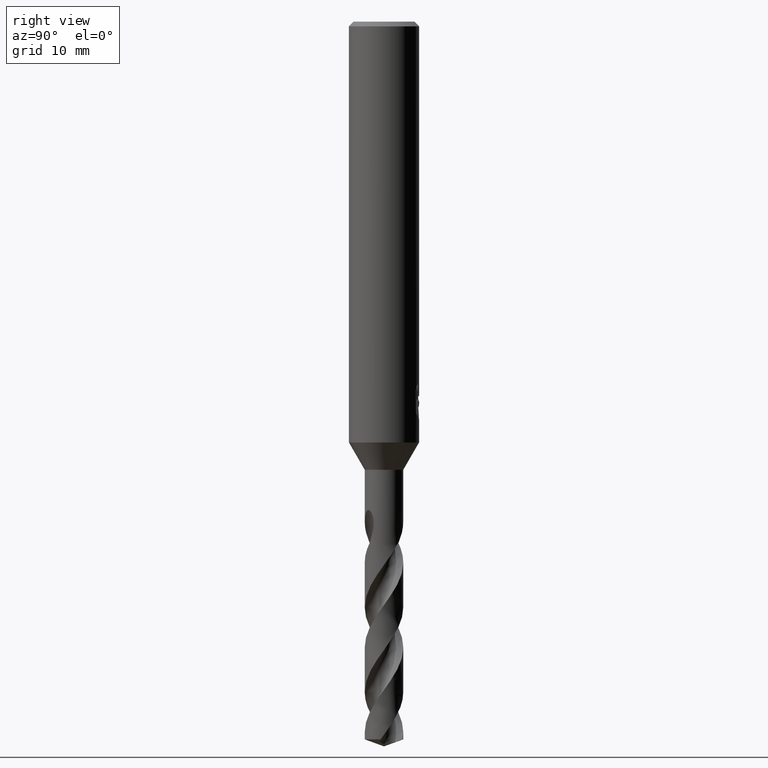
[diagram: clean part render]
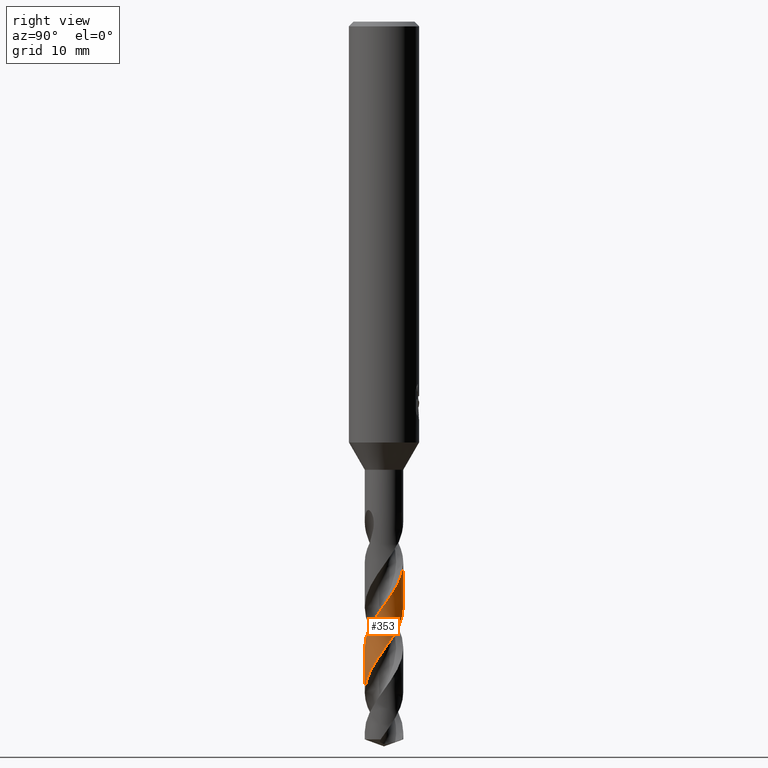
[diagram: same view with one face highlighted and labeled with its STEP entity id]
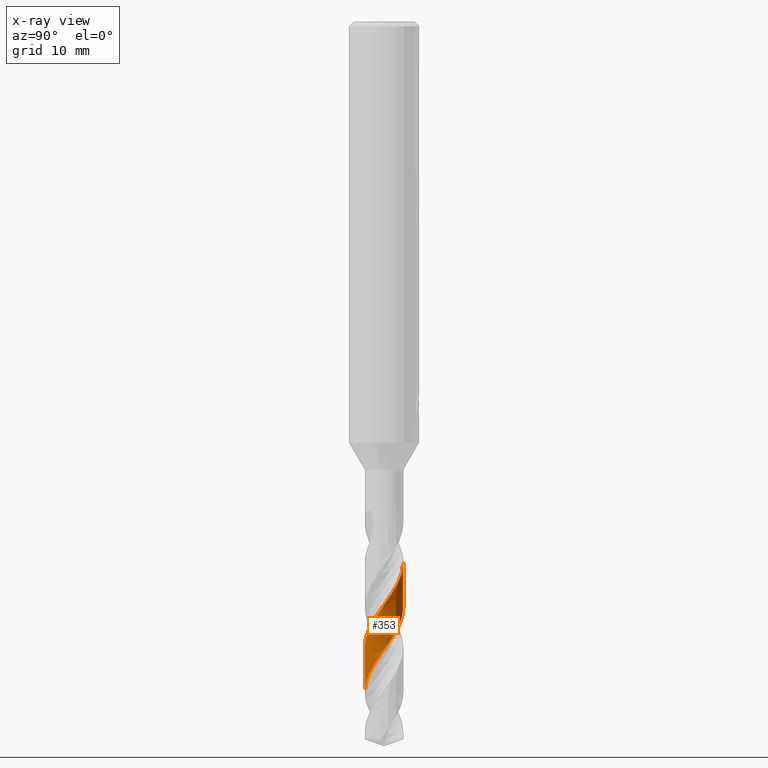
[diagram: x-ray of the same camera — body ghosted, the highlighted face saturated]
A machine part, right view. The second image highlights one B-rep face of the part: STEP entity #353.
The next image is the same camera in x-ray: the body ghosted, the highlighted face saturated — about 0% of this face is hidden behind the body in this view.
In plain terms, the highlighted conical surface has half-angle 0 deg.
Its self-contained STEP definition (entity closure, byte-faithful):
#309=VERTEX_POINT('',#819);
#353=ADVANCED_FACE('',(#869),#870,.T.);
#379=EDGE_CURVE('',#425,#737,#898,.T.);
#425=VERTEX_POINT('',#948);
#527=EDGE_CURVE('',#699,#737,#1063,.T.);
#691=EDGE_CURVE('',#699,#309,#1238,.T.);
#699=VERTEX_POINT('',#1247);
#737=VERTEX_POINT('',#1288);
#763=EDGE_CURVE('',#425,#309,#1316,.T.);
#819=CARTESIAN_POINT('',(-4.29757238529856E-012,-1.64995948228063,-53.53923476112));
#869=FACE_OUTER_BOUND('',#2096,.T.);
#870=CONICAL_SURFACE('',#2097,1.64995,5.15478555160187E-006);
#898=B_SPLINE_CURVE_WITH_KNOTS('',3,(#2405,#2406,#2407,#2408,#2409,#2410,#2411,#2412,#2413,#2414,#2415,#2416,#2417,#2418,#2419,#2420,#2421,#2422,#2423,#2424,#2425,#2426,#2427,#2428,#2429,#2430,#2431,#2432,#2433,#2434,#2435,#2436,#2437,#2438,#2439,#2440,#2441,#2442,#2443,#2444,#2445,#2446,#2447,#2448,#2449,#2450,#2451,#2452,#2453,#2454,#2455,#2456,#2457,#2458,#2459,#2460,#2461,#2462,#2463,#2464,#2465,#2466,#2467,#2468,#2469,#2470,#2471,#2472,#2473,#2474,#2475,#2476,#2477,#2478,#2479,#2480,#2481,#2482,#2483,#2484),.UNSPECIFIED.,.F.,.F.,(4,2,2,2,2,2,2,2,2,2,2,2,2,2,2,2,2,2,2,2,2,2,2,2,2,2,2,2,2,2,2,2,2,2,2,2,2,2,2,4),(0.0,0.936654168590701,1.53341847101532,1.82096909942437,2.22263054411962,2.77387093041088,3.73316041056545,4.20528015996942,4.85052500429398,5.93370910466652,6.11910520481942,7.20787945428481,7.61024288702898,8.1962060911429,9.24391561037399,9.65500218088401,10.5847428451121,11.0000485825015,11.9207724016093,12.347527747687,13.3305290457857,13.7034917992018,14.3174055845682,14.9344561027839,16.0374942137947,16.4024014950815,16.9459046809952,17.7136714483855,19.158643707242,19.659416950665,19.8424121654843,19.9605797826228,20.1051829639057,20.3058573077039,20.45498939836,20.5640584271276,20.680929651084,20.8641592525841,21.2535784283675,21.5619210214965),.UNSPECIFIED.);
#948=CARTESIAN_POINT('',(-5.56564880314397E-013,-1.64997919865343,-57.3641024703559));
#1063=LINE('',#3669,#3670);
#1238=B_SPLINE_CURVE_WITH_KNOTS('',3,(#4568,#4569,#4570,#4571,#4572,#4573,#4574,#4575,#4576,#4577,#4578,#4579,#4580,#4581,#4582,#4583,#4584,#4585,#4586,#4587,#4588,#4589,#4590,#4591,#4592,#4593,#4594,#4595,#4596,#4597,#4598,#4599,#4600,#4601,#4602,#4603,#4604,#4605,#4606,#4607,#4608,#4609,#4610,#4611,#4612,#4613,#4614,#4615,#4616,#4617,#4618,#4619,#4620,#4621,#4622,#4623,#4624,#4625,#4626,#4627,#4628,#4629,#4630,#4631,#4632,#4633,#4634,#4635,#4636,#4637,#4638,#4639,#4640,#4641,#4642,#4643,#4644,#4645,#4646,#4647,#4648,#4649,#4650,#4651,#4652,#4653,#4654,#4655,#4656,#4657,#4658,#4659,#4660,#4661,#4662,#4663),.UNSPECIFIED.,.F.,.F.,(4,2,2,2,2,2,2,2,2,2,2,2,2,2,2,2,2,2,2,2,2,2,2,2,2,2,2,2,2,2,2,2,2,2,2,2,2,2,2,2,2,2,2,2,2,2,2,4),(0.0,0.0700165623497992,0.100400821771222,0.117552978669846,0.127608380609091,0.349617333316838,0.41619752819465,0.457915672939033,0.496473863935403,0.547214202049622,0.658127612494924,0.705862693164858,0.835489133735537,0.907232766106796,0.968302841545072,0.998526717810259,1.06546504425116,1.94578151207064,2.09271465278354,2.50847442010473,2.97797359557852,3.80679059375761,4.37494109473815,5.11307460967204,5.77298387172185,6.68928809197674,6.80808210609517,7.67795932798041,8.5848889943836,9.05737084628214,9.87871690218857,10.3495337639685,11.2841425087653,11.7567890437276,12.7397886690961,13.2151735183789,13.8399944499678,14.7175140038209,14.9665239269621,15.9648504405574,16.5295470633208,17.3943693421963,17.6470507734527,18.62979068497,19.1608756776724,19.9706549312639,20.3814415592187,20.7960714352973),.UNSPECIFIED.);
#1247=CARTESIAN_POINT('',(9.89089745181191E-015,1.6499220608893,-46.2796909936593));
#1288=CARTESIAN_POINT('',(7.79090224859754E-011,1.6499417873786,-50.1065212476206));
#1316=LINE('',#5212,#5213);
#2096=EDGE_LOOP('',(#5330,#5331,#5332,#5333));
#2097=AXIS2_PLACEMENT_3D('',#5334,#5335,#5336);
#2405=CARTESIAN_POINT('',(-1.62487804019007,0.286829835456651,-61.3994491134608));
#2406=CARTESIAN_POINT('',(-1.65658207327476,0.10722040816341,-61.1460414921686));
#2407=CARTESIAN_POINT('',(-1.65816360091604,-0.0756871099392041,-60.8900208856617));
#2408=CARTESIAN_POINT('',(-1.61247304465644,-0.368383610417381,-60.4743910776431));
#2409=CARTESIAN_POINT('',(-1.58278070708708,-0.480272241920616,-60.3141743783466));
#2410=CARTESIAN_POINT('',(-1.5216746017873,-0.640382065816053,-60.0749821855219));
#2411=CARTESIAN_POINT('',(-1.49922303372301,-0.691292346113393,-59.9972952206045));
#2412=CARTESIAN_POINT('',(-1.43950767209933,-0.810121954850723,-59.8104617289039));
#2413=CARTESIAN_POINT('',(-1.39980786749593,-0.876960192948621,-59.7007709743299));
#2414=CARTESIAN_POINT('',(-1.29458315121534,-1.02855068400825,-59.4421186646543));
#2415=CARTESIAN_POINT('',(-1.22525932706739,-1.11025776617253,-59.2936322563048));
#2416=CARTESIAN_POINT('',(-1.01453906949032,-1.31449586108677,-58.8844429083165));
#2417=CARTESIAN_POINT('',(-0.85992953763041,-1.42042611777673,-58.6226768679746));
#2418=CARTESIAN_POINT('',(-0.607745599673416,-1.53671109236831,-58.2345891552087));
#2419=CARTESIAN_POINT('',(-0.521489494866867,-1.56808688485634,-58.1073098507256));
#2420=CARTESIAN_POINT('',(-0.31213411923689,-1.62502560826292,-57.804556568243));
#2421=CARTESIAN_POINT('',(-0.188200414045065,-1.64393480522184,-57.6284549272345));
#2422=CARTESIAN_POINT('',(0.145103927313678,-1.65682461580503,-57.1599928006804));
#2423=CARTESIAN_POINT('',(0.353180639810749,-1.62514377049107,-56.8744795723494));
#2424=CARTESIAN_POINT('',(0.58324465302738,-1.54386347660372,-56.530576127676));
#2425=CARTESIAN_POINT('',(0.616456657212126,-1.53090812013897,-56.4801861582192));
#2426=CARTESIAN_POINT('',(0.842687903843435,-1.43405278949682,-56.1337965480981));
#2427=CARTESIAN_POINT('',(1.0182743516452,-1.31518707860344,-55.8460911111234));
#2428=CARTESIAN_POINT('',(1.22182469750043,-1.11156589611614,-55.4414681054928));
#2429=CARTESIAN_POINT('',(1.27286621678875,-1.05274987963731,-55.3314604222269));
#2430=CARTESIAN_POINT('',(1.38777553456867,-0.89964048232021,-55.0629553645908));
#2431=CARTESIAN_POINT('',(1.44646356463427,-0.801937819939829,-54.9051561806754));
#2432=CARTESIAN_POINT('',(1.58093782274665,-0.514283577732301,-54.4623174185537));
#2433=CARTESIAN_POINT('',(1.632243888023,-0.315608167758886,-54.1764749665306));
#2434=CARTESIAN_POINT('',(1.65156803387037,-0.0327866827453422,-53.7809427524557));
#2435=CARTESIAN_POINT('',(1.65121635446919,0.0471772695489628,-53.6699272268224));
#2436=CARTESIAN_POINT('',(1.6312093280119,0.306782183261764,-53.3062843990578));
#2437=CARTESIAN_POINT('',(1.58793303123155,0.483178744663682,-53.0522621942332));
#2438=CARTESIAN_POINT('',(1.48509160163346,0.723440711617153,-52.6876002234735));
#2439=CARTESIAN_POINT('',(1.44794792785358,0.795172413086362,-52.5754634535449));
#2440=CARTESIAN_POINT('',(1.31212567099079,1.01618381685704,-52.2131488861463));
#2441=CARTESIAN_POINT('',(1.19449300412959,1.15218109795321,-51.9615749397393));
#2442=CARTESIAN_POINT('',(0.993504230419287,1.31990765509521,-51.5962701969243));
#2443=CARTESIAN_POINT('',(0.925955713253545,1.36813795823549,-51.4810743487344));
#2444=CARTESIAN_POINT('',(0.69188825638225,1.50997857412902,-51.0987913627216));
#2445=CARTESIAN_POINT('',(0.512815347795011,1.5798200531417,-50.8305343800899));
#2446=CARTESIAN_POINT('',(0.254491957343972,1.63180905435385,-50.4630758005745));
#2447=CARTESIAN_POINT('',(0.18261640434617,1.64140289392285,-50.3623253593759));
#2448=CARTESIAN_POINT('',(-0.00849529101303213,1.65421674054172,-50.094732545716));
#2449=CARTESIAN_POINT('',(-0.127568525941061,1.64927646008757,-49.9269082739965));
#2450=CARTESIAN_POINT('',(-0.362871370725628,1.61395462334916,-49.5930664338491));
#2451=CARTESIAN_POINT('',(-0.478736817790776,1.58348752139826,-49.4273176881994));
#2452=CARTESIAN_POINT('',(-0.790279824752404,1.46407748437211,-48.9618949287623));
#2453=CARTESIAN_POINT('',(-0.97317573918499,1.34944800415988,-48.6618749623332));
#2454=CARTESIAN_POINT('',(-1.180825434898,1.1545302282999,-48.2648129652528));
#2455=CARTESIAN_POINT('',(-1.22923238986385,1.1028413960986,-48.1664056874251));
#2456=CARTESIAN_POINT('',(-1.34102941005459,0.966951438749034,-47.9205062646428));
#2457=CARTESIAN_POINT('',(-1.39977159111961,0.879685794628004,-47.7722677240323));
#2458=CARTESIAN_POINT('',(-1.5202541427323,0.65796597707396,-47.4174057071236));
#2459=CARTESIAN_POINT('',(-1.57319846436421,0.518989899804332,-47.2125110025478));
#2460=CARTESIAN_POINT('',(-1.67029424788998,0.102235287532852,-46.615758970866));
#2461=CARTESIAN_POINT('',(-1.66348275421466,-0.18129437375609,-46.2272971783294));
#2462=CARTESIAN_POINT('',(-1.56111735634842,-0.542669209453535,-45.7021730647743));
#2463=CARTESIAN_POINT('',(-1.5264107912115,-0.633968981191171,-45.5658256526611));
#2464=CARTESIAN_POINT('',(-1.46780677599235,-0.754357257286932,-45.3819611352735));
#2465=CARTESIAN_POINT('',(-1.45284006875582,-0.782510707761524,-45.3388707855898));
#2466=CARTESIAN_POINT('',(-1.42948054330017,-0.824112569834871,-45.2734362510309));
#2467=CARTESIAN_POINT('',(-1.42015044683518,-0.840076969810659,-45.2476178992897));
#2468=CARTESIAN_POINT('',(-1.39915812493708,-0.874686803130782,-45.1897250566365));
#2469=CARTESIAN_POINT('',(-1.38745899668344,-0.893102821976583,-45.1575933857675));
#2470=CARTESIAN_POINT('',(-1.35945337455932,-0.935402724239059,-45.0798825559833));
#2471=CARTESIAN_POINT('',(-1.34935257655362,-0.949647161744774,-45.0504238820891));
#2472=CARTESIAN_POINT('',(-1.33000158752677,-0.976481290897003,-44.9975381674368));
#2473=CARTESIAN_POINT('',(-1.32144694660766,-0.988036039501888,-44.9752253612181));
#2474=CARTESIAN_POINT('',(-1.30600585065636,-1.00830776858548,-44.9368861077269));
#2475=CARTESIAN_POINT('',(-1.29930247863204,-1.01693463852454,-44.9208159259238));
#2476=CARTESIAN_POINT('',(-1.28500355425303,-1.03495244530709,-44.8877479169504));
#2477=CARTESIAN_POINT('',(-1.2773899225972,-1.04433945128034,-44.8707924754173));
#2478=CARTESIAN_POINT('',(-1.25723243495655,-1.06862342158622,-44.8275921314833));
#2479=CARTESIAN_POINT('',(-1.24437679708192,-1.08358337520245,-44.8016095926763));
#2480=CARTESIAN_POINT('',(-1.20229455776425,-1.1307302846667,-44.7214476439231));
#2481=CARTESIAN_POINT('',(-1.17118509274619,-1.16307550200536,-44.6689345469071));
#2482=CARTESIAN_POINT('',(-1.11024049855844,-1.22104935105427,-44.5774105171888));
#2483=CARTESIAN_POINT('',(-1.08167877652874,-1.24648696974988,-44.5381534437774));
#2484=CARTESIAN_POINT('',(-1.05138084188125,-1.27153877506452,-44.4998));
#3669=CARTESIAN_POINT('',(-2.02222961070245E-016,1.64995,-51.6997245567304));
#3670=VECTOR('',#5572,1.0);
#4568=CARTESIAN_POINT('',(-1.14681600760072,1.18618108899032,-44.4998));
#4569=CARTESIAN_POINT('',(-1.13750862682632,1.19517973052821,-44.5192190428464));
#4570=CARTESIAN_POINT('',(-1.12806978546467,1.2040939114296,-44.5386112347089));
#4571=CARTESIAN_POINT('',(-1.11430898187815,1.21678315477534,-44.5663816012756));
#4572=CARTESIAN_POINT('',(-1.11011737870248,1.22060869164212,-44.5747760362152));
#4573=CARTESIAN_POINT('',(-1.10351211692982,1.22657464167352,-44.5878990948639));
#4574=CARTESIAN_POINT('',(-1.10111970700106,1.22872286090903,-44.592630977358));
#4575=CARTESIAN_POINT('',(-1.09730937912579,1.23212415266753,-44.6001330087247));
#4576=CARTESIAN_POINT('',(-1.09589794845401,1.23337972500408,-44.6029045253314));
#4577=CARTESIAN_POINT('',(-1.06324732227333,1.26232442280827,-44.6668457001763));
#4578=CARTESIAN_POINT('',(-1.0310397030118,1.28880942803083,-44.7262183253547));
#4579=CARTESIAN_POINT('',(-0.986409053266961,1.3226419903376,-44.8040964147521));
#4580=CARTESIAN_POINT('',(-0.975990346403756,1.33034967761952,-44.8219965061011));
#4581=CARTESIAN_POINT('',(-0.95882206976497,1.34273797027719,-44.8510991112348));
#4582=CARTESIAN_POINT('',(-0.952163588392702,1.34746804986686,-44.8622924940933));
#4583=CARTESIAN_POINT('',(-0.939260531790565,1.35649028981711,-44.8838251470141));
#4584=CARTESIAN_POINT('',(-0.933027760064585,1.36078501091133,-44.8941566399924));
#4585=CARTESIAN_POINT('',(-0.918510144681246,1.37064151898249,-44.9180828249204));
#4586=CARTESIAN_POINT('',(-0.910207662905227,1.37616911389452,-44.9316630680306));
#4587=CARTESIAN_POINT('',(-0.88359044790925,1.39354374339339,-44.9749526865775));
#4588=CARTESIAN_POINT('',(-0.865155719202576,1.40506076122222,-45.0045638014858));
#4589=CARTESIAN_POINT('',(-0.838566137500564,1.42095585961475,-45.0471612958671));
#4590=CARTESIAN_POINT('',(-0.830668557791967,1.42558671214997,-45.0598074240231));
#4591=CARTESIAN_POINT('',(-0.800858032089645,1.44273387154168,-45.1075510386967));
#4592=CARTESIAN_POINT('',(-0.778866044886938,1.45472062065157,-45.1427337628533));
#4593=CARTESIAN_POINT('',(-0.744467643622458,1.47247496716549,-45.197290632339));
#4594=CARTESIAN_POINT('',(-0.732138386210753,1.47864398441361,-45.2167541018939));
#4595=CARTESIAN_POINT('',(-0.70918164541812,1.48977325396469,-45.2527633217944));
#4596=CARTESIAN_POINT('',(-0.69856495751059,1.49478111671276,-45.2693265031001));
#4597=CARTESIAN_POINT('',(-0.682604910483545,1.50210198384984,-45.2940668532785));
#4598=CARTESIAN_POINT('',(-0.677305486085707,1.50449902950047,-45.3022558673711));
#4599=CARTESIAN_POINT('',(-0.660218349406237,1.51211920752487,-45.328571520319));
#4600=CARTESIAN_POINT('',(-0.648353977291718,1.51724463486475,-45.3467153874949));
#4601=CARTESIAN_POINT('',(-0.479520004580402,1.58783307881701,-45.6035272742557));
#4602=CARTESIAN_POINT('',(-0.313247880620025,1.62885144018189,-45.8395914040588));
#4603=CARTESIAN_POINT('',(-0.115126438970659,1.64614554242439,-46.1182024181453));
#4604=CARTESIAN_POINT('',(-0.0867357224805918,1.64788532605089,-46.1580636425876));
#4605=CARTESIAN_POINT('',(0.0220800733375192,1.65173492459591,-46.3107003846865));
#4606=CARTESIAN_POINT('',(0.10261671857269,1.64869607163725,-46.4233463970376));
#4607=CARTESIAN_POINT('',(0.273013554490918,1.6297180861069,-46.6633820302668));
#4608=CARTESIAN_POINT('',(0.362349388988187,1.61220532721681,-46.7903744626878));
#4609=CARTESIAN_POINT('',(0.604034544272601,1.54373401892617,-47.1426261246903));
#4610=CARTESIAN_POINT('',(0.751276262756507,1.47772035028593,-47.366182858032));
#4611=CARTESIAN_POINT('',(0.979636377919292,1.33218224980362,-47.7448127257994));
#4612=CARTESIAN_POINT('',(1.06623831872806,1.26391354316615,-47.8985061576136));
#4613=CARTESIAN_POINT('',(1.24807222892747,1.08856188726546,-48.2529961738444));
#4614=CARTESIAN_POINT('',(1.3376515995807,0.976442629974058,-48.4524114361144));
#4615=CARTESIAN_POINT('',(1.47792490328993,0.744571846673539,-48.8313355927592));
#4616=CARTESIAN_POINT('',(1.53111767652148,0.62790470225023,-49.0096181882428));
#4617=CARTESIAN_POINT('',(1.62470580097266,0.337708959586025,-49.4373119115828));
#4618=CARTESIAN_POINT('',(1.65161621979322,0.161204704336429,-49.6837883600023));
#4619=CARTESIAN_POINT('',(1.64963237702619,-0.0393487546067798,-49.9643446999691));
#4620=CARTESIAN_POINT('',(1.64892335734912,-0.0623447499025552,-49.9965322980052));
#4621=CARTESIAN_POINT('',(1.63902608207217,-0.253521437849674,-50.2646883115659));
#4622=CARTESIAN_POINT('',(1.60459417501994,-0.419563096455484,-50.5001647307957));
#4623=CARTESIAN_POINT('',(1.484018750422,-0.742244367410703,-50.9820478842066));
#4624=CARTESIAN_POINT('',(1.39658018932474,-0.895940138820733,-51.2264969068384));
#4625=CARTESIAN_POINT('',(1.22943964063026,-1.10416291946807,-51.6009246157982));
#4626=CARTESIAN_POINT('',(1.16631174827523,-1.17066015781184,-51.7288857074454));
#4627=CARTESIAN_POINT('',(0.979050220928587,-1.33759652112284,-52.0797691116111));
#4628=CARTESIAN_POINT('',(0.845554461021403,-1.42571133388454,-52.3013595330398));
#4629=CARTESIAN_POINT('',(0.619209232656714,-1.532068706214,-52.6521375785054));
#4630=CARTESIAN_POINT('',(0.533600143115776,-1.5639551984045,-52.7796939003591));
#4631=CARTESIAN_POINT('',(0.271259825544695,-1.63756189822219,-53.1608870956944));
#4632=CARTESIAN_POINT('',(0.0900413244247731,-1.65740414136352,-53.4126838506195));
#4633=CARTESIAN_POINT('',(-0.181960793450023,-1.64244696023074,-53.7946864565072));
#4634=CARTESIAN_POINT('',(-0.272816363682278,-1.62982937168734,-53.922693811637));
#4635=CARTESIAN_POINT('',(-0.548192475096097,-1.56786395217216,-54.3174779504336));
#4636=CARTESIAN_POINT('',(-0.725397903558065,-1.49412905884019,-54.5825679108563));
#4637=CARTESIAN_POINT('',(-0.963656424603707,-1.34247258347983,-54.9783877402852));
#4638=CARTESIAN_POINT('',(-1.0371032158065,-1.28658886121813,-55.107057089274));
#4639=CARTESIAN_POINT('',(-1.1955050788118,-1.14361323452585,-55.40541825147));
#4640=CARTESIAN_POINT('',(-1.27614803535686,-1.05283883041694,-55.5744190578395));
#4641=CARTESIAN_POINT('',(-1.44429362050782,-0.815638216781618,-55.9823002233621));
#4642=CARTESIAN_POINT('',(-1.52062512615643,-0.662620143112492,-56.2187211291496));
#4643=CARTESIAN_POINT('',(-1.58688639898898,-0.454466847904622,-56.524203792481));
#4644=CARTESIAN_POINT('',(-1.59949330636902,-0.407877517720927,-56.5916843469861));
#4645=CARTESIAN_POINT('',(-1.65231205662347,-0.172205895443204,-56.9302527254182));
#4646=CARTESIAN_POINT('',(-1.66115155056348,0.0226119574098097,-57.1995803514161));
#4647=CARTESIAN_POINT('',(-1.62171063311002,0.323250537636542,-57.6235327710724));
#4648=CARTESIAN_POINT('',(-1.59669528285983,0.430058500547106,-57.7764605376767));
#4649=CARTESIAN_POINT('',(-1.50722915086698,0.691901708882489,-58.1646322551609));
#4650=CARTESIAN_POINT('',(-1.42925790872094,0.84131265449172,-58.3977378917264));
#4651=CARTESIAN_POINT('',(-1.30098001439224,1.01602510628377,-58.7008143269322));
#4652=CARTESIAN_POINT('',(-1.27025627012433,1.05418187138471,-58.7692841460632));
#4653=CARTESIAN_POINT('',(-1.11205538988296,1.23370310927202,-59.1046827854054));
#4654=CARTESIAN_POINT('',(-0.962293275083424,1.35381491599149,-59.3700687596391));
#4655=CARTESIAN_POINT('',(-0.704937235161809,1.49537756776881,-59.7808142097316));
#4656=CARTESIAN_POINT('',(-0.610279313334325,1.53642896991399,-59.9246293493134));
#4657=CARTESIAN_POINT('',(-0.363431355163899,1.61709493799265,-60.2887948123844));
#4658=CARTESIAN_POINT('',(-0.208008843362423,1.64435966864957,-60.5074121968974));
#4659=CARTESIAN_POINT('',(0.028773826182045,1.65167161106976,-60.838514900912));
#4660=CARTESIAN_POINT('',(0.108406037410697,1.64835237641356,-60.9496490080606));
#4661=CARTESIAN_POINT('',(0.267176663896482,1.63020145332519,-61.1739829782303));
#4662=CARTESIAN_POINT('',(0.346152986130691,1.61527672439238,-61.2867365391658));
#4663=CARTESIAN_POINT('',(0.423727718483429,1.59466448527232,-61.3994491134607));
#5212=CARTESIAN_POINT('',(2.01884889627602E-016,-1.64995,-51.6997245567304));
#5213=VECTOR('',#5816,1.0);
#5330=ORIENTED_EDGE('',*,*,#527,.F.);
#5331=ORIENTED_EDGE('',*,*,#691,.T.);
#5332=ORIENTED_EDGE('',*,*,#763,.F.);
#5333=ORIENTED_EDGE('',*,*,#379,.T.);
#5334=CARTESIAN_POINT('',(0.0,0.0,-51.6997245567304));
#5335=DIRECTION('',(0.0,-0.0,-1.0));
#5336=DIRECTION('',(0.0,1.0,0.0));
#5572=DIRECTION('',(-6.31258313905548E-022,5.15478555157904E-006,-0.999999999986714));
#5816=DIRECTION('',(-6.31258313905548E-022,5.15478555157904E-006,0.999999999986714));